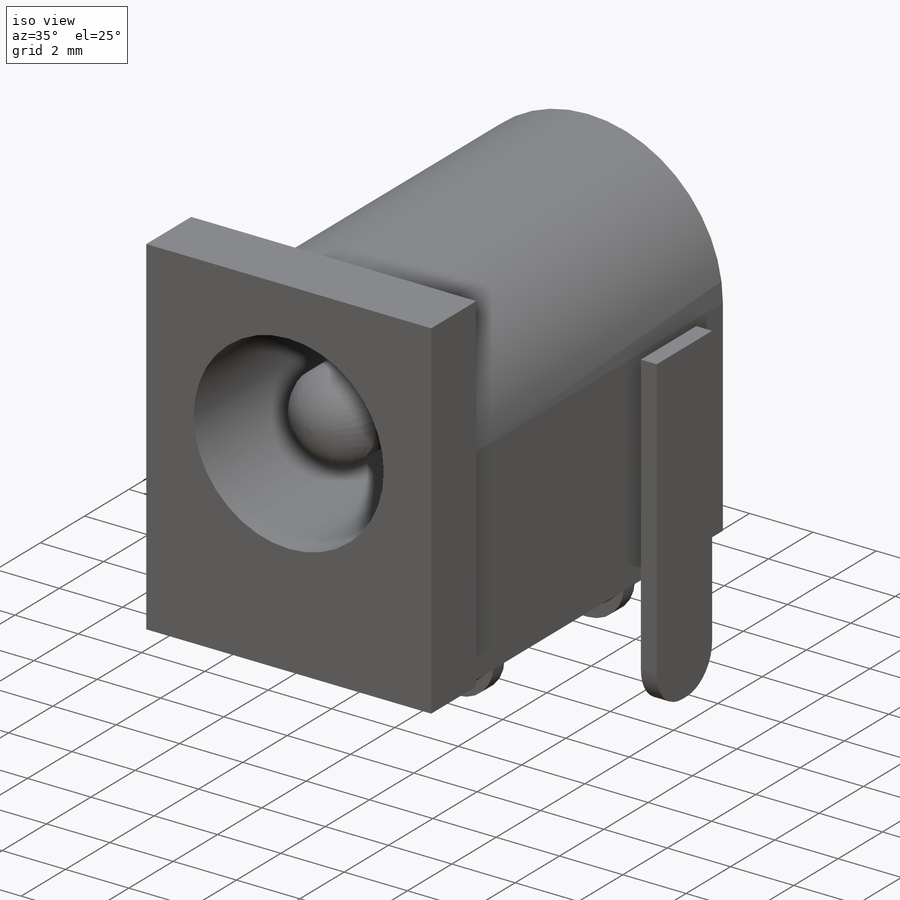
[diagram: iso view]
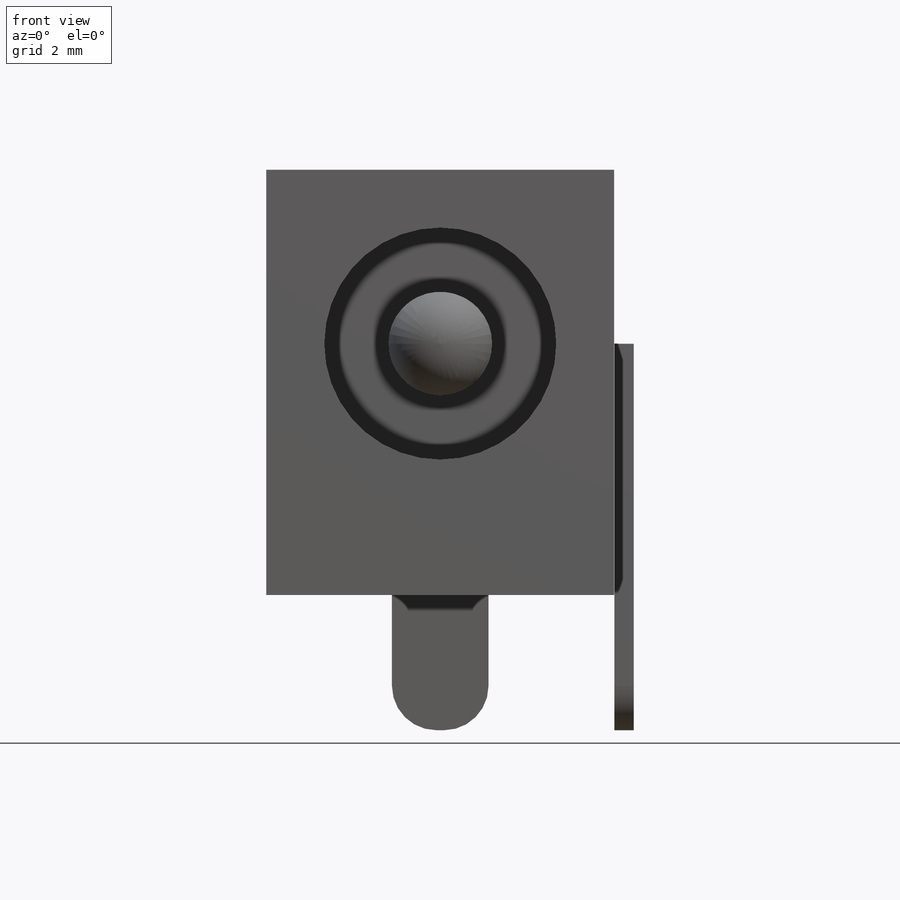
[diagram: front view]
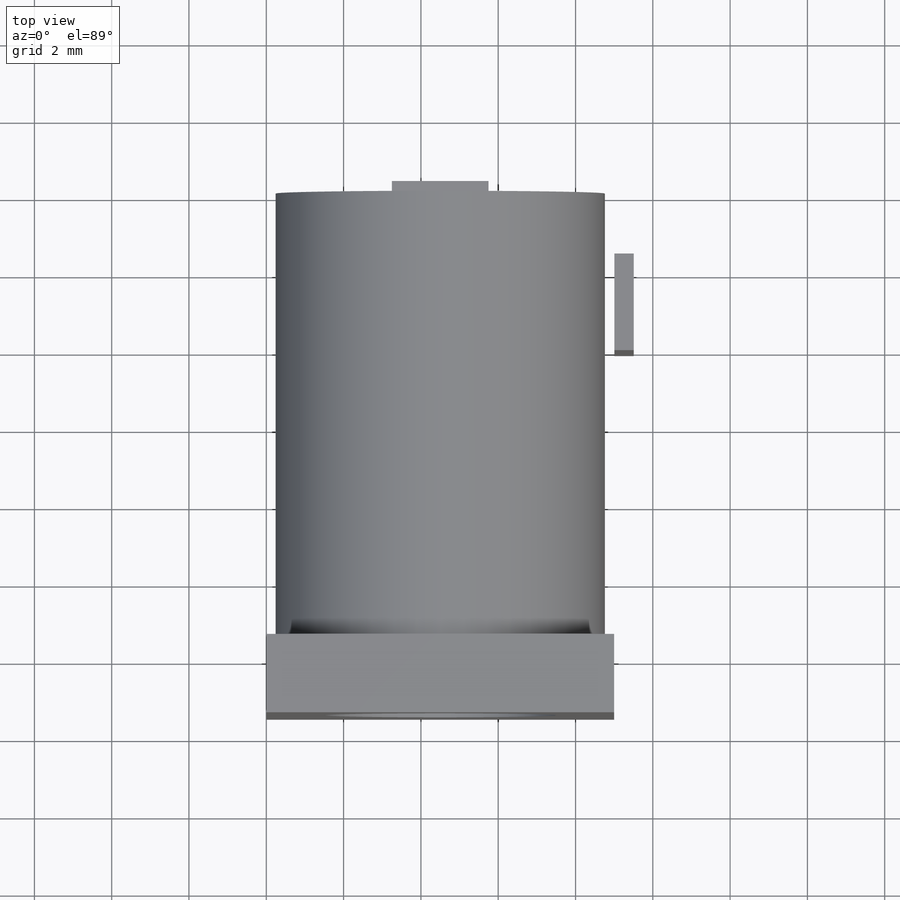
[diagram: top view]
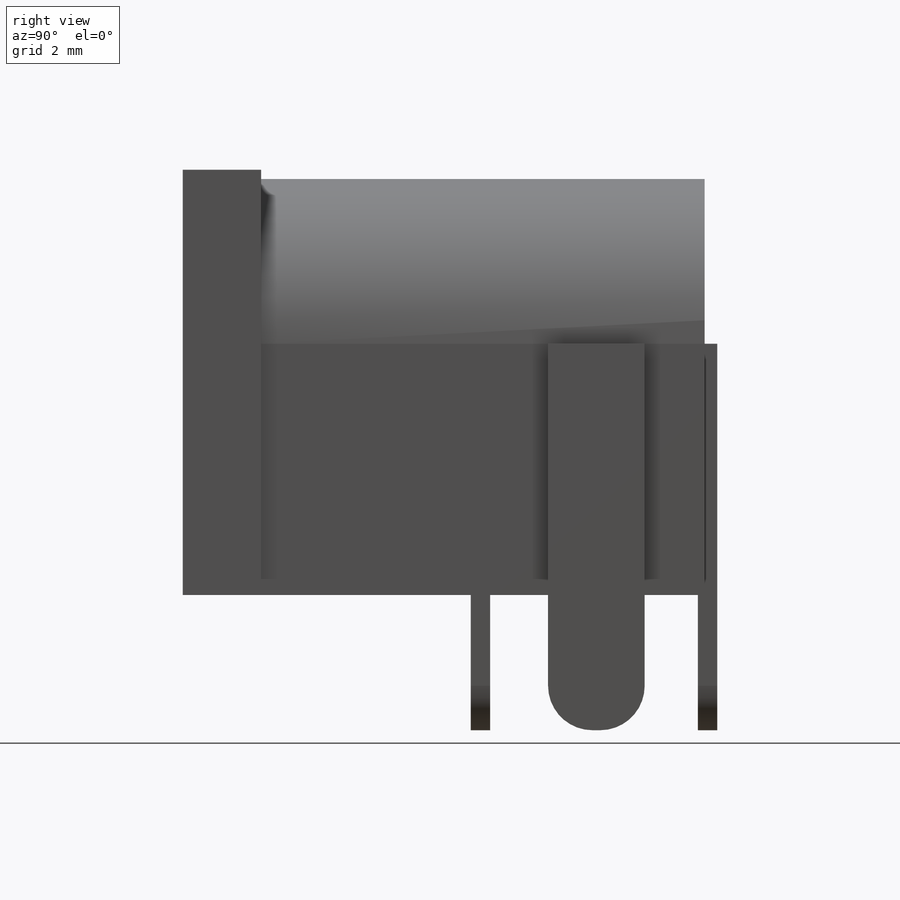
[diagram: right view]
SOLIDWORKS PART (.sldprt)
format: sldprt  version: not decoded by parser v0  size: 523,264 bytes
history: native  units: mm
features: sketch x7, cut_extrude x4, extrude x3, material x1, dome x1 (+11 scaffold rows collapsed)
feature tree (27):
  scaffold x11  (default folders/planes/origin — collapsed)
  material  "Material <sin especificar>"
  sketch  "Sketch1"  dims[D1=9.0mm D2=11.0mm]
  extrude  "Extrude1"  Depth=13.5mm
  sketch  "Sketch2"  dims[D1=6.5mm]
  cut_extrude  "Cut-Extrude1"  Depth=11.472185mm
  sketch  "Sketch3"  dims[c1.D1=7.7mm c1.D2=3.0mm c1.D3=6.0mm c1.D4=4.9mm c1.D5=0.5mm c1.D6=0.25mm c1.D7=2.5mm c1.D8=~13.902862mm c2.D8=90.0deg c3.D8=3.5mm c4.D8=90.0deg c5.D8=1.25mm c5.D9=1.25mm c5.D10=1.25mm]
  extrude  "Extrude2"  Depth=3.5mm
  sketch  "Sketch4"  dims[D2=1.15mm D1=0.0mm]
  cut_extrude  "Cut-Extrude2"  [1 undecoded]
  sketch  "Sketch5"  dims[D2=1.15mm D1=0.0mm]
  cut_extrude  "Cut-Extrude3"  [1 undecoded]
  sketch  "Sketch6"  dims[D1=6.0mm D2=6.5mm]
  cut_extrude  "Cut-Extrude4"  Depth=10.5mm
  sketch  "Sketch7"  dims[D1=0.0mm]
  extrude  "Extrude3"  Depth=8.5mm
  dome  "Dome1"
decode coverage: 12 of 15 modeling features carry decoded parameters
note: ~ marks probable driven/reference dimensions
note: 2 parameter values undecoded
note: suppression state not decoded; provenance and decode notes live in map.json
